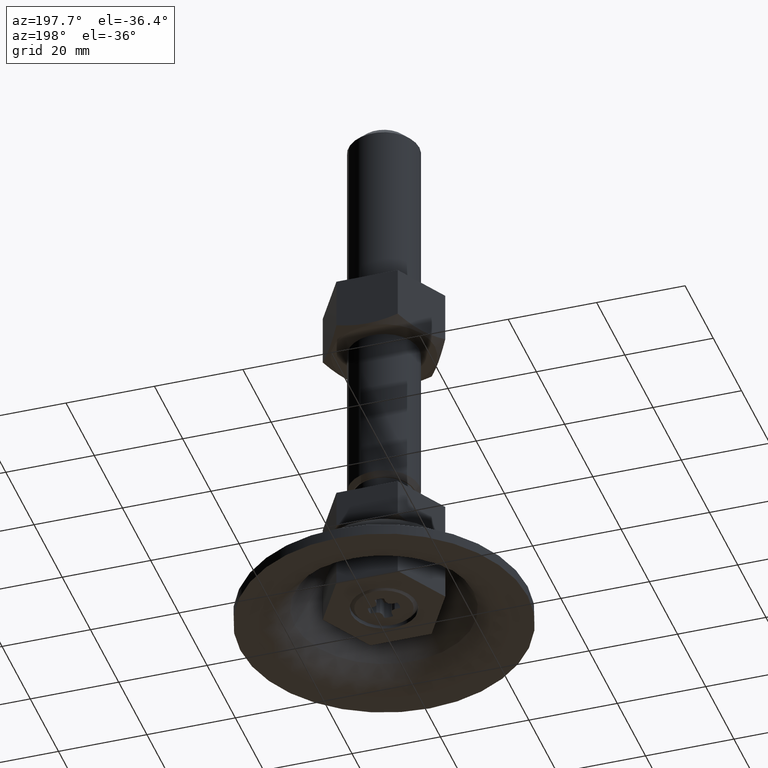
[diagram: clean part render]
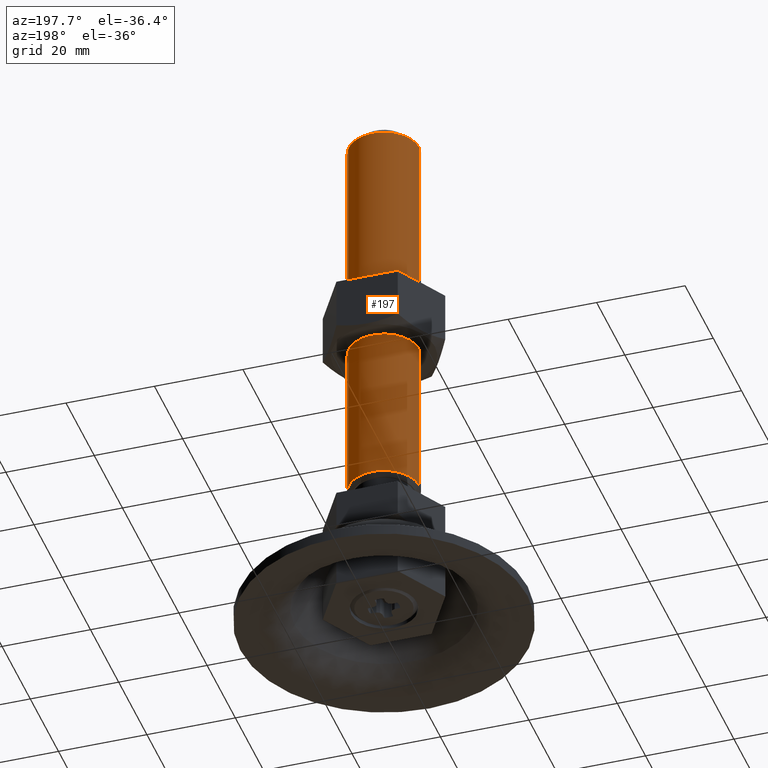
[diagram: same view with one face highlighted and labeled with its STEP entity id]
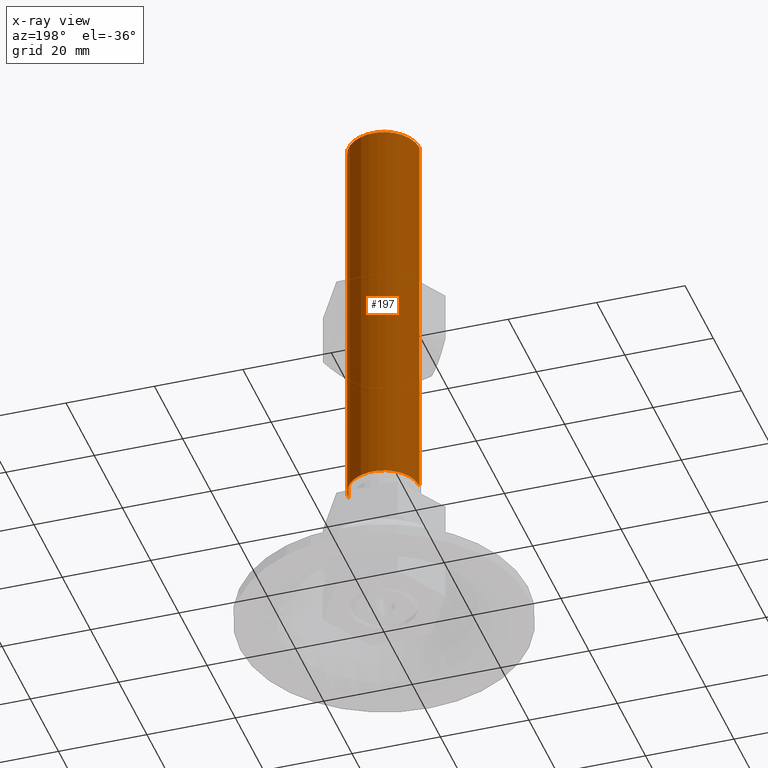
[diagram: x-ray of the same camera — body ghosted, the highlighted face saturated]
A machine part, auxiliary view. The second image highlights one B-rep face of the part: STEP entity #197.
The next image is the same camera in x-ray: the body ghosted, the highlighted face saturated — about 0% of this face is hidden behind the body in this view.
In plain terms, the highlighted cylindrical surface (partial cylindrical patch) has radius 8 mm, axis along (0, 0, 1).
Its self-contained STEP definition (entity closure, byte-faithful):
#197=ADVANCED_FACE('',(#726),#725,.T.);
#725=CYLINDRICAL_SURFACE('',#1436,8.00000000017E+00);
#726=FACE_OUTER_BOUND('',#1437,.T.);
#1433=CARTESIAN_POINT('',(-3.19460013998E-11,0.00000000000E+00,0.00000000000E+00));
#1434=DIRECTION('',(0.00000000000E+00,-0.00000000000E+00,1.00000000000E+00));
#1435=DIRECTION('',(1.00000000000E+00,0.00000000000E+00,0.00000000000E+00));
#1436=AXIS2_PLACEMENT_3D('',#1433,#1434,#1435);
#1437=EDGE_LOOP('',(#2113,#2114,#2115,#2116));
#2113=ORIENTED_EDGE('',*,*,#2420,.T.);
#2114=ORIENTED_EDGE('',*,*,#2421,.F.);
#2115=ORIENTED_EDGE('',*,*,#2422,.F.);
#2116=ORIENTED_EDGE('',*,*,#2423,.T.);
#2420=EDGE_CURVE('',#3332,#3331,#3351,.T.);
#2421=EDGE_CURVE('',#3357,#3331,#3358,.T.);
#2422=EDGE_CURVE('',#3364,#3357,#3365,.T.);
#2423=EDGE_CURVE('',#3364,#3332,#3371,.T.);
#3331=VERTEX_POINT('',#4471);
#3332=VERTEX_POINT('',#4472);
#3351=CIRCLE('',#4484,8.00000000027E+00);
#3357=VERTEX_POINT('',#4485);
#3358=(BOUNDED_CURVE() B_SPLINE_CURVE(1,(#4486,#4487),.UNSPECIFIED.,.F.,.F.) B_SPLINE_CURVE_WITH_KNOTS((2,2),(8.33333332085E-02,9.16666666563E-01),.UNSPECIFIED.) CURVE() GEOMETRIC_REPRESENTATION_ITEM() RATIONAL_B_SPLINE_CURVE((1.00000000000E+00,1.00000000000E+00)) REPRESENTATION_ITEM('') );
#3364=VERTEX_POINT('',#4488);
#3365=CIRCLE('',#4492,8.00000000007E+00);
#3371=(BOUNDED_CURVE() B_SPLINE_CURVE(1,(#4493,#4494),.UNSPECIFIED.,.F.,.F.) B_SPLINE_CURVE_WITH_KNOTS((2,2),(8.33333333333E-02,9.16666666667E-01),.UNSPECIFIED.) CURVE() GEOMETRIC_REPRESENTATION_ITEM() RATIONAL_B_SPLINE_CURVE((7.50000000000E-01,7.50000000000E-01)) REPRESENTATION_ITEM('') );
#4471=CARTESIAN_POINT('',(8.00000000023E+00,8.88178419700E-16,9.74999998657E+01));
#4472=CARTESIAN_POINT('',(-8.00000000030E+00,0.00000000000E+00,9.74999998657E+01));
#4481=CARTESIAN_POINT('',(-3.19460013998E-11,0.00000000000E+00,9.74999998657E+01));
#4482=DIRECTION('',(-0.00000000000E+00,0.00000000000E+00,-1.00000000000E+00));
#4483=DIRECTION('',(-1.00000000000E+00,-1.22460635382E-16,0.00000000000E+00));
#4484=AXIS2_PLACEMENT_3D('',#4481,#4482,#4483);
#4485=CARTESIAN_POINT('',(8.00000000004E+00,8.88178419700E-16,6.99999999998E+00));
#4486=CARTESIAN_POINT('',(8.00000000014E+00,0.00000000000E+00,6.99999998642E+00));
#4487=CARTESIAN_POINT('',(8.00000000014E+00,0.00000000000E+00,9.74999998544E+01));
#4488=CARTESIAN_POINT('',(-8.00000000010E+00,0.00000000000E+00,6.99999999998E+00));
#4489=CARTESIAN_POINT('',(-3.19460013998E-11,0.00000000000E+00,6.99999999998E+00));
#4490=DIRECTION('',(-0.00000000000E+00,0.00000000000E+00,-1.00000000000E+00));
#4491=DIRECTION('',(-1.00000000000E+00,-1.22460635382E-16,0.00000000000E+00));
#4492=AXIS2_PLACEMENT_3D('',#4489,#4490,#4491);
#4493=CARTESIAN_POINT('',(-8.00000000020E+00,-2.96059473233E-16,6.99999999998E+00));
#4494=CARTESIAN_POINT('',(-8.00000000020E+00,-2.96059473233E-16,9.74999998657E+01));